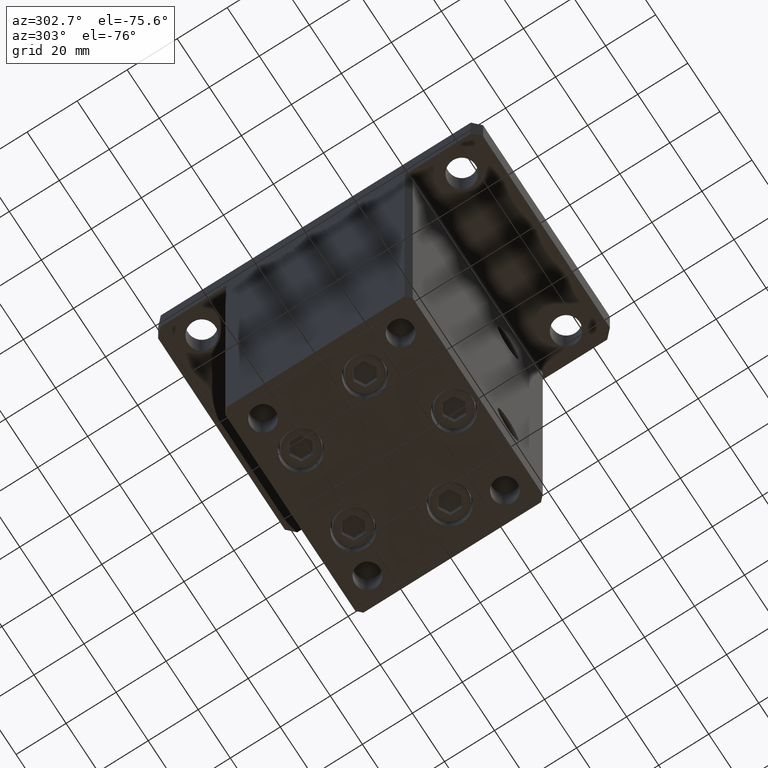
[diagram: clean part render]
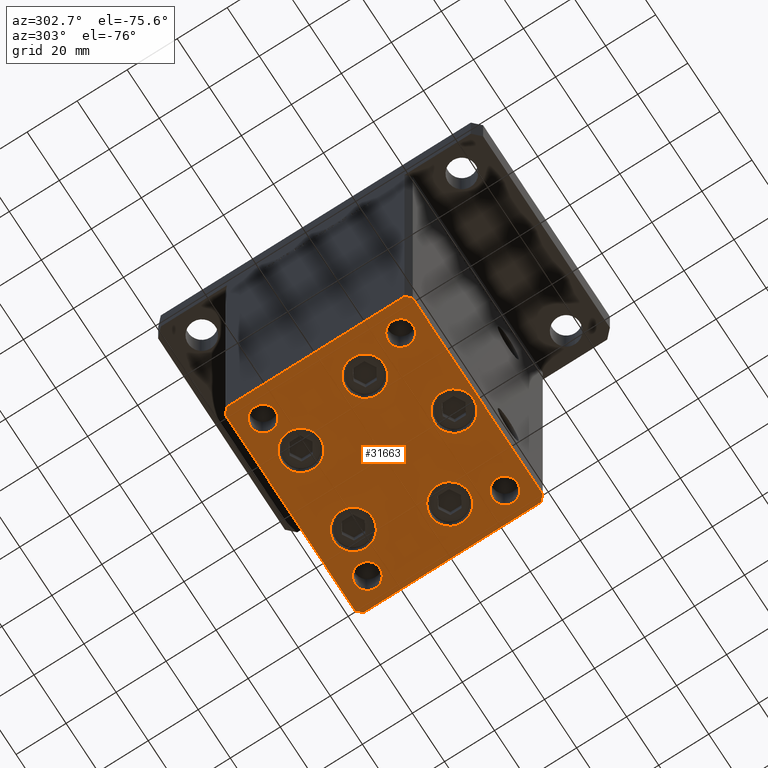
[diagram: same view with one face highlighted and labeled with its STEP entity id]
A machine part, auxiliary view. The second image highlights one B-rep face of the part: STEP entity #31663.
In plain terms, the highlighted planar face has unit normal (0, 0, -1).
Its self-contained STEP definition (entity closure, byte-faithful):
#205 = VERTEX_POINT ( 'NONE', #30127 ) ;
#528 = CARTESIAN_POINT ( 'NONE',  ( -16.32291334290543006, 22.74999999999999645, 0.000000000000000000 ) ) ;
#670 = VERTEX_POINT ( 'NONE', #18656 ) ;
#1270 = CARTESIAN_POINT ( 'NONE',  ( 8.572913342905422951, 22.75000000000000000, 0.000000000000000000 ) ) ;
#1925 = ORIENTED_EDGE ( 'NONE', *, *, #3607, .T. ) ;
#1993 = ORIENTED_EDGE ( 'NONE', *, *, #39143, .T. ) ;
#2087 = CIRCLE ( 'NONE', #35825, 7.750000000000000000 ) ;
#2397 = DIRECTION ( 'NONE',  ( -0.7071067811865463515, -0.7071067811865487940, 0.000000000000000000 ) ) ;
#2403 = EDGE_LOOP ( 'NONE', ( #7863, #24078, #17124, #48594, #31186, #21417, #42253, #13893 ) ) ;
#2420 = ORIENTED_EDGE ( 'NONE', *, *, #35835, .T. ) ;
#2423 = EDGE_LOOP ( 'NONE', ( #33132, #53246 ) ) ;
#2559 = AXIS2_PLACEMENT_3D ( 'NONE', #10699, #19879, #40768 ) ;
#2572 = CARTESIAN_POINT ( 'NONE',  ( 18.64865316429776954, -9.333333333333330373, 0.000000000000000000 ) ) ;
#2661 = AXIS2_PLACEMENT_3D ( 'NONE', #23625, #49128, #53471 ) ;
#2774 = EDGE_CURVE ( 'NONE', #42783, #5317, #49599, .T. ) ;
#2787 = DIRECTION ( 'NONE',  ( 0.000000000000000000, -0.000000000000000000, -1.000000000000000000 ) ) ;
#2815 = CIRCLE ( 'NONE', #7152, 7.750000000000000000 ) ;
#2883 = AXIS2_PLACEMENT_3D ( 'NONE', #50037, #16941, #28320 ) ;
#3387 = CARTESIAN_POINT ( 'NONE',  ( -26.39865316429776954, -9.333333333333337478, 0.000000000000000000 ) ) ;
#3418 = VERTEX_POINT ( 'NONE', #18766 ) ;
#3607 = EDGE_CURVE ( 'NONE', #51659, #52617, #14964, .T. ) ;
#3648 = DIRECTION ( 'NONE',  ( -1.000000000000000000, -3.426614273534436165E-16, 0.000000000000000000 ) ) ;
#3722 = CARTESIAN_POINT ( 'NONE',  ( 16.32291334290542295, 22.75000000000000000, 0.000000000000000000 ) ) ;
#4303 = CARTESIAN_POINT ( 'NONE',  ( -40.49999999999999289, -37.50000000000002132, 0.000000000000000000 ) ) ;
#4362 = CARTESIAN_POINT ( 'NONE',  ( 26.39865316429776954, -9.333333333333330373, 0.000000000000000000 ) ) ;
#4763 = VECTOR ( 'NONE', #21897, 1000.000000000000000 ) ;
#4830 = EDGE_CURVE ( 'NONE', #40602, #41640, #9829, .T. ) ;
#4915 = CIRCLE ( 'NONE', #30883, 5.000000000000000888 ) ;
#5127 = VERTEX_POINT ( 'NONE', #16188 ) ;
#5317 = VERTEX_POINT ( 'NONE', #2572 ) ;
#5473 = CARTESIAN_POINT ( 'NONE',  ( 37.50000000000000000, -27.49999999999999645, 0.000000000000000000 ) ) ;
#6049 = CIRCLE ( 'NONE', #2559, 4.999999999999997335 ) ;
#6276 = EDGE_CURVE ( 'NONE', #17779, #19355, #51447, .T. ) ;
#6465 = EDGE_CURVE ( 'NONE', #28092, #9363, #43660, .T. ) ;
#6801 = LINE ( 'NONE', #14675, #34071 ) ;
#7124 = EDGE_CURVE ( 'NONE', #15220, #5127, #8940, .T. ) ;
#7152 = AXIS2_PLACEMENT_3D ( 'NONE', #20611, #16004, #20341 ) ;
#7254 = VERTEX_POINT ( 'NONE', #1270 ) ;
#7321 = CARTESIAN_POINT ( 'NONE',  ( 42.49999999999992895, 35.50000000000000000, 0.000000000000000000 ) ) ;
#7650 = CARTESIAN_POINT ( 'NONE',  ( 37.50000000000000000, 27.49999999999999645, 0.000000000000000000 ) ) ;
#7818 = VERTEX_POINT ( 'NONE', #43544 ) ;
#7863 = ORIENTED_EDGE ( 'NONE', *, *, #46088, .T. ) ;
#8012 = AXIS2_PLACEMENT_3D ( 'NONE', #4362, #16569, #37172 ) ;
#8092 = EDGE_CURVE ( 'NONE', #48744, #20488, #48949, .T. ) ;
#8648 = LINE ( 'NONE', #4303, #4763 ) ;
#8940 = CIRCLE ( 'NONE', #47030, 7.750000000000000000 ) ;
#9363 = VERTEX_POINT ( 'NONE', #23080 ) ;
#9829 = CIRCLE ( 'NONE', #24530, 5.000000000000000888 ) ;
#10111 = ORIENTED_EDGE ( 'NONE', *, *, #50610, .T. ) ;
#10342 = FACE_BOUND ( 'NONE', #27877, .T. ) ;
#10699 = CARTESIAN_POINT ( 'NONE',  ( 32.50000000000000000, -27.49999999999999645, 0.000000000000000000 ) ) ;
#10872 = FACE_BOUND ( 'NONE', #24703, .T. ) ;
#10946 = CARTESIAN_POINT ( 'NONE',  ( 3.429011037612589276E-15, -28.00000000000000000, 0.000000000000000000 ) ) ;
#11809 = DIRECTION ( 'NONE',  ( 0.000000000000000000, -0.000000000000000000, -1.000000000000000000 ) ) ;
#11935 = DIRECTION ( 'NONE',  ( 1.000000000000000000, 0.000000000000000000, 0.000000000000000000 ) ) ;
#12621 = DIRECTION ( 'NONE',  ( 1.000000000000000000, 0.000000000000000000, 0.000000000000000000 ) ) ;
#12847 = ORIENTED_EDGE ( 'NONE', *, *, #18396, .T. ) ;
#13007 = DIRECTION ( 'NONE',  ( 0.000000000000000000, -0.000000000000000000, -1.000000000000000000 ) ) ;
#13147 = EDGE_CURVE ( 'NONE', #205, #48744, #52339, .T. ) ;
#13474 = DIRECTION ( 'NONE',  ( 9.773090005503140331E-17, -1.000000000000000000, 0.000000000000000000 ) ) ;
#13539 = CARTESIAN_POINT ( 'NONE',  ( -27.50000000000000000, 27.50000000000000355, 0.000000000000000000 ) ) ;
#13893 = ORIENTED_EDGE ( 'NONE', *, *, #34201, .T. ) ;
#13989 = VERTEX_POINT ( 'NONE', #13539 ) ;
#14137 = PLANE ( 'NONE',  #28828 ) ;
#14390 = VERTEX_POINT ( 'NONE', #32676 ) ;
#14486 = CARTESIAN_POINT ( 'NONE',  ( -34.14865316429776954, -9.333333333333337478, 0.000000000000000000 ) ) ;
#14675 = CARTESIAN_POINT ( 'NONE',  ( 42.50000000000000711, -35.50000000000000000, 0.000000000000000000 ) ) ;
#14948 = CARTESIAN_POINT ( 'NONE',  ( -37.50000000000000711, -27.49999999999999645, 0.000000000000000000 ) ) ;
#14964 = CIRCLE ( 'NONE', #40078, 4.999999999999997335 ) ;
#15126 = AXIS2_PLACEMENT_3D ( 'NONE', #48952, #11809, #12621 ) ;
#15220 = VERTEX_POINT ( 'NONE', #28268 ) ;
#15669 = DIRECTION ( 'NONE',  ( 1.000000000000000000, 0.000000000000000000, 0.000000000000000000 ) ) ;
#15792 = EDGE_CURVE ( 'NONE', #7818, #3418, #17027, .T. ) ;
#16004 = DIRECTION ( 'NONE',  ( 0.000000000000000000, -0.000000000000000000, -1.000000000000000000 ) ) ;
#16155 = DIRECTION ( 'NONE',  ( -0.000000000000000000, 0.000000000000000000, 1.000000000000000000 ) ) ;
#16188 = CARTESIAN_POINT ( 'NONE',  ( -7.749999999999996447, -28.00000000000000000, 0.000000000000000000 ) ) ;
#16309 = EDGE_CURVE ( 'NONE', #27930, #13989, #23297, .T. ) ;
#16569 = DIRECTION ( 'NONE',  ( 0.000000000000000000, -0.000000000000000000, -1.000000000000000000 ) ) ;
#16941 = DIRECTION ( 'NONE',  ( -0.000000000000000000, 0.000000000000000000, 1.000000000000000000 ) ) ;
#17027 = LINE ( 'NONE', #19995, #50852 ) ;
#17124 = ORIENTED_EDGE ( 'NONE', *, *, #15792, .T. ) ;
#17632 = CARTESIAN_POINT ( 'NONE',  ( -27.50000000000000000, -27.49999999999999645, 0.000000000000000000 ) ) ;
#17779 = VERTEX_POINT ( 'NONE', #31955 ) ;
#18083 = DIRECTION ( 'NONE',  ( 0.7071067811865463515, -0.7071067811865487940, 0.000000000000000000 ) ) ;
#18138 = LINE ( 'NONE', #51505, #26245 ) ;
#18144 = EDGE_LOOP ( 'NONE', ( #10111, #50726 ) ) ;
#18170 = DIRECTION ( 'NONE',  ( 1.000000000000000000, 0.000000000000000000, 0.000000000000000000 ) ) ;
#18396 = EDGE_CURVE ( 'NONE', #52617, #51659, #6049, .T. ) ;
#18398 = EDGE_LOOP ( 'NONE', ( #20002, #43331 ) ) ;
#18545 = CIRCLE ( 'NONE', #25478, 7.750000000000000000 ) ;
#18656 = CARTESIAN_POINT ( 'NONE',  ( 27.50000000000000355, 27.49999999999999645, 0.000000000000000000 ) ) ;
#18766 = CARTESIAN_POINT ( 'NONE',  ( 42.50000000000000711, -35.50000000000000000, 0.000000000000000000 ) ) ;
#19335 = VECTOR ( 'NONE', #13474, 1000.000000000000000 ) ;
#19355 = VERTEX_POINT ( 'NONE', #48921 ) ;
#19879 = DIRECTION ( 'NONE',  ( 0.000000000000000000, -0.000000000000000000, -1.000000000000000000 ) ) ;
#19925 = DIRECTION ( 'NONE',  ( 0.000000000000000000, -0.000000000000000000, -1.000000000000000000 ) ) ;
#19995 = CARTESIAN_POINT ( 'NONE',  ( 40.50000000000000000, -37.50000000000000711, 0.000000000000000000 ) ) ;
#20002 = ORIENTED_EDGE ( 'NONE', *, *, #25926, .T. ) ;
#20265 = DIRECTION ( 'NONE',  ( 0.000000000000000000, -0.000000000000000000, -1.000000000000000000 ) ) ;
#20341 = DIRECTION ( 'NONE',  ( 1.000000000000000000, 0.000000000000000000, 0.000000000000000000 ) ) ;
#20488 = VERTEX_POINT ( 'NONE', #28313 ) ;
#20611 = CARTESIAN_POINT ( 'NONE',  ( 26.39865316429776954, -9.333333333333330373, 0.000000000000000000 ) ) ;
#21417 = ORIENTED_EDGE ( 'NONE', *, *, #8092, .T. ) ;
#21598 = CIRCLE ( 'NONE', #49331, 7.750000000000003553 ) ;
#21897 = DIRECTION ( 'NONE',  ( 1.000000000000000000, 1.713307136767217096E-16, 0.000000000000000000 ) ) ;
#22117 = CARTESIAN_POINT ( 'NONE',  ( -26.39865316429776954, -9.333333333333337478, 0.000000000000000000 ) ) ;
#22271 = FACE_BOUND ( 'NONE', #26288, .T. ) ;
#22292 = EDGE_CURVE ( 'NONE', #38853, #7254, #21598, .T. ) ;
#22435 = CARTESIAN_POINT ( 'NONE',  ( 24.07291334290542650, 22.75000000000000000, 0.000000000000000000 ) ) ;
#22631 = VERTEX_POINT ( 'NONE', #49226 ) ;
#23080 = CARTESIAN_POINT ( 'NONE',  ( -18.64865316429776954, -9.333333333333335702, 0.000000000000000000 ) ) ;
#23297 = CIRCLE ( 'NONE', #32836, 5.000000000000000888 ) ;
#23625 = CARTESIAN_POINT ( 'NONE',  ( -32.50000000000000000, -27.49999999999999645, 0.000000000000000000 ) ) ;
#23807 = DIRECTION ( 'NONE',  ( 0.000000000000000000, -0.000000000000000000, -1.000000000000000000 ) ) ;
#24078 = ORIENTED_EDGE ( 'NONE', *, *, #41882, .T. ) ;
#24530 = AXIS2_PLACEMENT_3D ( 'NONE', #37670, #46349, #37128 ) ;
#24703 = EDGE_LOOP ( 'NONE', ( #51605, #47291 ) ) ;
#24851 = VERTEX_POINT ( 'NONE', #49456 ) ;
#25421 = LINE ( 'NONE', #25695, #34369 ) ;
#25478 = AXIS2_PLACEMENT_3D ( 'NONE', #46846, #30557, #38163 ) ;
#25695 = CARTESIAN_POINT ( 'NONE',  ( -42.50000000000000000, -35.50000000000000711, 0.000000000000000000 ) ) ;
#25884 = CARTESIAN_POINT ( 'NONE',  ( -32.50000000000000000, 27.50000000000000355, 0.000000000000000000 ) ) ;
#25926 = EDGE_CURVE ( 'NONE', #41640, #40602, #32990, .T. ) ;
#26245 = VECTOR ( 'NONE', #2397, 1000.000000000000000 ) ;
#26288 = EDGE_LOOP ( 'NONE', ( #39417, #1993 ) ) ;
#26451 = DIRECTION ( 'NONE',  ( 1.000000000000000000, 0.000000000000000000, 0.000000000000000000 ) ) ;
#26865 = DIRECTION ( 'NONE',  ( 1.000000000000000000, 0.000000000000000000, 0.000000000000000000 ) ) ;
#27850 = CARTESIAN_POINT ( 'NONE',  ( 3.429011037612589276E-15, -28.00000000000000000, 0.000000000000000000 ) ) ;
#27877 = EDGE_LOOP ( 'NONE', ( #12847, #1925 ) ) ;
#27930 = VERTEX_POINT ( 'NONE', #42689 ) ;
#28092 = VERTEX_POINT ( 'NONE', #14486 ) ;
#28268 = CARTESIAN_POINT ( 'NONE',  ( 7.750000000000003553, -28.00000000000000000, 0.000000000000000000 ) ) ;
#28313 = CARTESIAN_POINT ( 'NONE',  ( -40.50000000000000711, 37.49999999999997868, 0.000000000000000000 ) ) ;
#28320 = DIRECTION ( 'NONE',  ( 1.000000000000000000, 0.000000000000000000, 0.000000000000000000 ) ) ;
#28828 = AXIS2_PLACEMENT_3D ( 'NONE', #47493, #51826, #26865 ) ;
#28928 = CARTESIAN_POINT ( 'NONE',  ( 34.14865316429776954, -9.333333333333328596, 0.000000000000000000 ) ) ;
#29680 = DIRECTION ( 'NONE',  ( 1.000000000000000000, 0.000000000000000000, 0.000000000000000000 ) ) ;
#30127 = CARTESIAN_POINT ( 'NONE',  ( 42.49999999999992895, 35.50000000000000000, 0.000000000000000000 ) ) ;
#30557 = DIRECTION ( 'NONE',  ( 0.000000000000000000, -0.000000000000000000, -1.000000000000000000 ) ) ;
#30601 = VECTOR ( 'NONE', #3648, 1000.000000000000000 ) ;
#30675 = FACE_BOUND ( 'NONE', #42286, .T. ) ;
#30883 = AXIS2_PLACEMENT_3D ( 'NONE', #53311, #16155, #32960 ) ;
#30942 = FACE_BOUND ( 'NONE', #47752, .T. ) ;
#31186 = ORIENTED_EDGE ( 'NONE', *, *, #13147, .T. ) ;
#31204 = FACE_BOUND ( 'NONE', #52649, .T. ) ;
#31456 = CIRCLE ( 'NONE', #2883, 4.999999999999997335 ) ;
#31663 = ADVANCED_FACE ( 'NONE', ( #30942, #30675, #48015, #39609, #22271, #31204, #10342, #10872, #38813, #34734 ), #14137, .T. ) ;
#31955 = CARTESIAN_POINT ( 'NONE',  ( -24.07291334290543006, 22.74999999999999645, 0.000000000000000000 ) ) ;
#32029 = ORIENTED_EDGE ( 'NONE', *, *, #6276, .T. ) ;
#32676 = CARTESIAN_POINT ( 'NONE',  ( -42.50000000000000711, 35.49999999999997158, 0.000000000000000000 ) ) ;
#32836 = AXIS2_PLACEMENT_3D ( 'NONE', #25884, #34550, #29680 ) ;
#32960 = DIRECTION ( 'NONE',  ( 1.000000000000000000, 0.000000000000000000, 0.000000000000000000 ) ) ;
#32990 = CIRCLE ( 'NONE', #2661, 5.000000000000000888 ) ;
#33132 = ORIENTED_EDGE ( 'NONE', *, *, #51514, .T. ) ;
#33563 = DIRECTION ( 'NONE',  ( 0.7071067811865474617, 0.7071067811865474617, 0.000000000000000000 ) ) ;
#34071 = VECTOR ( 'NONE', #39358, 1000.000000000000000 ) ;
#34201 = EDGE_CURVE ( 'NONE', #14390, #24851, #53617, .T. ) ;
#34330 = CIRCLE ( 'NONE', #47315, 4.999999999999997335 ) ;
#34369 = VECTOR ( 'NONE', #18083, 1000.000000000000000 ) ;
#34550 = DIRECTION ( 'NONE',  ( -0.000000000000000000, 0.000000000000000000, 1.000000000000000000 ) ) ;
#34734 = FACE_BOUND ( 'NONE', #18398, .T. ) ;
#34825 = VERTEX_POINT ( 'NONE', #7650 ) ;
#34838 = DIRECTION ( 'NONE',  ( 0.000000000000000000, -0.000000000000000000, -1.000000000000000000 ) ) ;
#34984 = AXIS2_PLACEMENT_3D ( 'NONE', #528, #13007, #11935 ) ;
#35825 = AXIS2_PLACEMENT_3D ( 'NONE', #22117, #34838, #26451 ) ;
#35835 = EDGE_CURVE ( 'NONE', #7254, #38853, #41972, .T. ) ;
#36470 = DIRECTION ( 'NONE',  ( 1.000000000000000000, 0.000000000000000000, 0.000000000000000000 ) ) ;
#36814 = DIRECTION ( 'NONE',  ( 1.000000000000000000, 0.000000000000000000, 0.000000000000000000 ) ) ;
#37128 = DIRECTION ( 'NONE',  ( 1.000000000000000000, 0.000000000000000000, 0.000000000000000000 ) ) ;
#37172 = DIRECTION ( 'NONE',  ( 1.000000000000000000, 0.000000000000000000, 0.000000000000000000 ) ) ;
#37515 = CIRCLE ( 'NONE', #49651, 7.750000000000000000 ) ;
#37570 = EDGE_CURVE ( 'NONE', #34825, #670, #31456, .T. ) ;
#37670 = CARTESIAN_POINT ( 'NONE',  ( -32.50000000000000000, -27.49999999999999645, 0.000000000000000000 ) ) ;
#38163 = DIRECTION ( 'NONE',  ( 1.000000000000000000, 0.000000000000000000, 0.000000000000000000 ) ) ;
#38813 = FACE_OUTER_BOUND ( 'NONE', #2403, .T. ) ;
#38853 = VERTEX_POINT ( 'NONE', #22435 ) ;
#39047 = CARTESIAN_POINT ( 'NONE',  ( 32.50000000000000000, -27.49999999999999645, 0.000000000000000000 ) ) ;
#39143 = EDGE_CURVE ( 'NONE', #9363, #28092, #2087, .T. ) ;
#39358 = DIRECTION ( 'NONE',  ( -1.172770800660376741E-15, 1.000000000000000000, 0.000000000000000000 ) ) ;
#39417 = ORIENTED_EDGE ( 'NONE', *, *, #6465, .T. ) ;
#39425 = DIRECTION ( 'NONE',  ( 1.000000000000000000, 0.000000000000000000, 0.000000000000000000 ) ) ;
#39609 = FACE_BOUND ( 'NONE', #2423, .T. ) ;
#40078 = AXIS2_PLACEMENT_3D ( 'NONE', #39047, #46669, #18170 ) ;
#40396 = DIRECTION ( 'NONE',  ( -0.7071067811865474617, 0.7071067811865474617, 0.000000000000000000 ) ) ;
#40602 = VERTEX_POINT ( 'NONE', #14948 ) ;
#40768 = DIRECTION ( 'NONE',  ( 1.000000000000000000, 0.000000000000000000, 0.000000000000000000 ) ) ;
#40806 = CARTESIAN_POINT ( 'NONE',  ( 40.49999999999991473, 37.50000000000000711, 0.000000000000000000 ) ) ;
#41640 = VERTEX_POINT ( 'NONE', #17632 ) ;
#41761 = ORIENTED_EDGE ( 'NONE', *, *, #22292, .T. ) ;
#41882 = EDGE_CURVE ( 'NONE', #22631, #7818, #8648, .T. ) ;
#41943 = CARTESIAN_POINT ( 'NONE',  ( -42.50000000000000711, 35.49999999999997158, 0.000000000000000000 ) ) ;
#41972 = CIRCLE ( 'NONE', #15126, 7.750000000000003553 ) ;
#42253 = ORIENTED_EDGE ( 'NONE', *, *, #50866, .T. ) ;
#42286 = EDGE_LOOP ( 'NONE', ( #2420, #41761 ) ) ;
#42620 = CARTESIAN_POINT ( 'NONE',  ( 27.50000000000000355, -27.49999999999999645, 0.000000000000000000 ) ) ;
#42689 = CARTESIAN_POINT ( 'NONE',  ( -37.50000000000000711, 27.50000000000000355, 0.000000000000000000 ) ) ;
#42783 = VERTEX_POINT ( 'NONE', #28928 ) ;
#43331 = ORIENTED_EDGE ( 'NONE', *, *, #4830, .T. ) ;
#43544 = CARTESIAN_POINT ( 'NONE',  ( 40.50000000000000000, -37.50000000000000711, 0.000000000000000000 ) ) ;
#43660 = CIRCLE ( 'NONE', #50606, 7.750000000000000000 ) ;
#44022 = ORIENTED_EDGE ( 'NONE', *, *, #45029, .F. ) ;
#44945 = CARTESIAN_POINT ( 'NONE',  ( 40.49999999999991473, 37.50000000000000711, 0.000000000000000000 ) ) ;
#45029 = EDGE_CURVE ( 'NONE', #670, #34825, #34330, .T. ) ;
#45610 = ORIENTED_EDGE ( 'NONE', *, *, #53349, .T. ) ;
#46088 = EDGE_CURVE ( 'NONE', #24851, #22631, #25421, .T. ) ;
#46349 = DIRECTION ( 'NONE',  ( 0.000000000000000000, -0.000000000000000000, -1.000000000000000000 ) ) ;
#46439 = EDGE_CURVE ( 'NONE', #13989, #27930, #4915, .T. ) ;
#46669 = DIRECTION ( 'NONE',  ( 0.000000000000000000, -0.000000000000000000, -1.000000000000000000 ) ) ;
#46846 = CARTESIAN_POINT ( 'NONE',  ( -16.32291334290543006, 22.74999999999999645, 0.000000000000000000 ) ) ;
#47030 = AXIS2_PLACEMENT_3D ( 'NONE', #27850, #23807, #15669 ) ;
#47291 = ORIENTED_EDGE ( 'NONE', *, *, #16309, .F. ) ;
#47309 = DIRECTION ( 'NONE',  ( -0.000000000000000000, 0.000000000000000000, 1.000000000000000000 ) ) ;
#47315 = AXIS2_PLACEMENT_3D ( 'NONE', #51898, #47309, #39425 ) ;
#47493 = CARTESIAN_POINT ( 'NONE',  ( 0.000000000000000000, 0.000000000000000000, 0.000000000000000000 ) ) ;
#47752 = EDGE_LOOP ( 'NONE', ( #32029, #45610 ) ) ;
#47817 = DIRECTION ( 'NONE',  ( 1.000000000000000000, 0.000000000000000000, 0.000000000000000000 ) ) ;
#48015 = FACE_BOUND ( 'NONE', #18144, .T. ) ;
#48594 = ORIENTED_EDGE ( 'NONE', *, *, #51875, .T. ) ;
#48744 = VERTEX_POINT ( 'NONE', #44945 ) ;
#48921 = CARTESIAN_POINT ( 'NONE',  ( -8.572913342905431833, 22.74999999999999645, 0.000000000000000000 ) ) ;
#48949 = LINE ( 'NONE', #40806, #30601 ) ;
#48952 = CARTESIAN_POINT ( 'NONE',  ( 16.32291334290542295, 22.75000000000000000, 0.000000000000000000 ) ) ;
#49128 = DIRECTION ( 'NONE',  ( 0.000000000000000000, -0.000000000000000000, -1.000000000000000000 ) ) ;
#49226 = CARTESIAN_POINT ( 'NONE',  ( -40.49999999999999289, -37.50000000000002132, 0.000000000000000000 ) ) ;
#49331 = AXIS2_PLACEMENT_3D ( 'NONE', #3722, #20265, #36814 ) ;
#49456 = CARTESIAN_POINT ( 'NONE',  ( -42.50000000000000000, -35.50000000000000711, 0.000000000000000000 ) ) ;
#49599 = CIRCLE ( 'NONE', #8012, 7.750000000000000000 ) ;
#49651 = AXIS2_PLACEMENT_3D ( 'NONE', #10946, #2787, #47817 ) ;
#50037 = CARTESIAN_POINT ( 'NONE',  ( 32.50000000000000000, 27.49999999999999645, 0.000000000000000000 ) ) ;
#50606 = AXIS2_PLACEMENT_3D ( 'NONE', #3387, #19925, #36470 ) ;
#50610 = EDGE_CURVE ( 'NONE', #5317, #42783, #2815, .T. ) ;
#50682 = VECTOR ( 'NONE', #40396, 1000.000000000000114 ) ;
#50726 = ORIENTED_EDGE ( 'NONE', *, *, #2774, .T. ) ;
#50852 = VECTOR ( 'NONE', #33563, 1000.000000000000114 ) ;
#50866 = EDGE_CURVE ( 'NONE', #20488, #14390, #18138, .T. ) ;
#51447 = CIRCLE ( 'NONE', #34984, 7.750000000000000000 ) ;
#51505 = CARTESIAN_POINT ( 'NONE',  ( -40.50000000000000711, 37.49999999999997868, 0.000000000000000000 ) ) ;
#51514 = EDGE_CURVE ( 'NONE', #5127, #15220, #37515, .T. ) ;
#51605 = ORIENTED_EDGE ( 'NONE', *, *, #46439, .F. ) ;
#51659 = VERTEX_POINT ( 'NONE', #42620 ) ;
#51826 = DIRECTION ( 'NONE',  ( -0.000000000000000000, 0.000000000000000000, 1.000000000000000000 ) ) ;
#51875 = EDGE_CURVE ( 'NONE', #3418, #205, #6801, .T. ) ;
#51898 = CARTESIAN_POINT ( 'NONE',  ( 32.50000000000000000, 27.49999999999999645, 0.000000000000000000 ) ) ;
#52339 = LINE ( 'NONE', #7321, #50682 ) ;
#52617 = VERTEX_POINT ( 'NONE', #5473 ) ;
#52649 = EDGE_LOOP ( 'NONE', ( #53428, #44022 ) ) ;
#53246 = ORIENTED_EDGE ( 'NONE', *, *, #7124, .T. ) ;
#53311 = CARTESIAN_POINT ( 'NONE',  ( -32.50000000000000000, 27.50000000000000355, 0.000000000000000000 ) ) ;
#53349 = EDGE_CURVE ( 'NONE', #19355, #17779, #18545, .T. ) ;
#53428 = ORIENTED_EDGE ( 'NONE', *, *, #37570, .F. ) ;
#53471 = DIRECTION ( 'NONE',  ( 1.000000000000000000, 0.000000000000000000, 0.000000000000000000 ) ) ;
#53617 = LINE ( 'NONE', #41943, #19335 ) ;